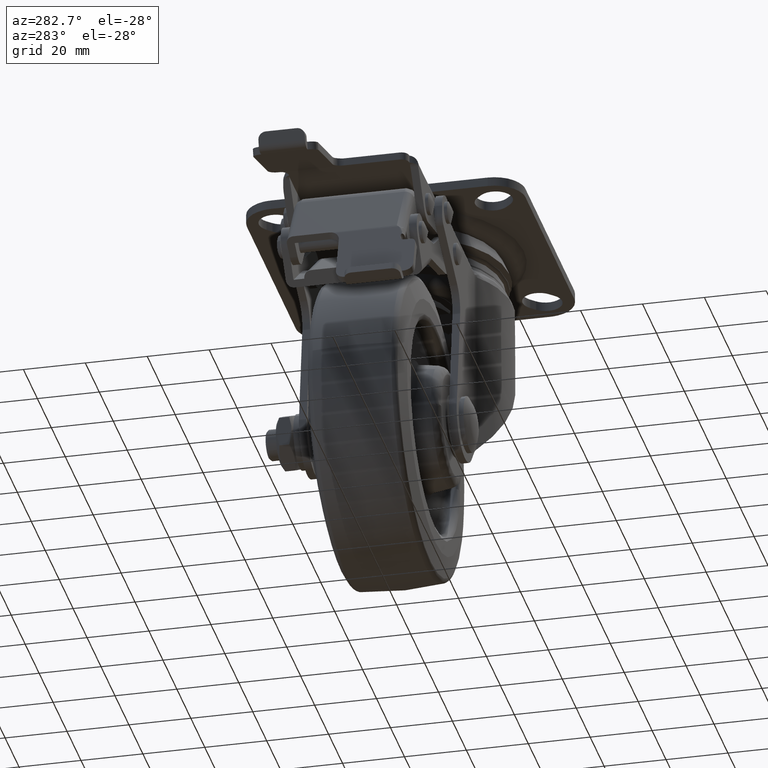
[diagram: clean part render]
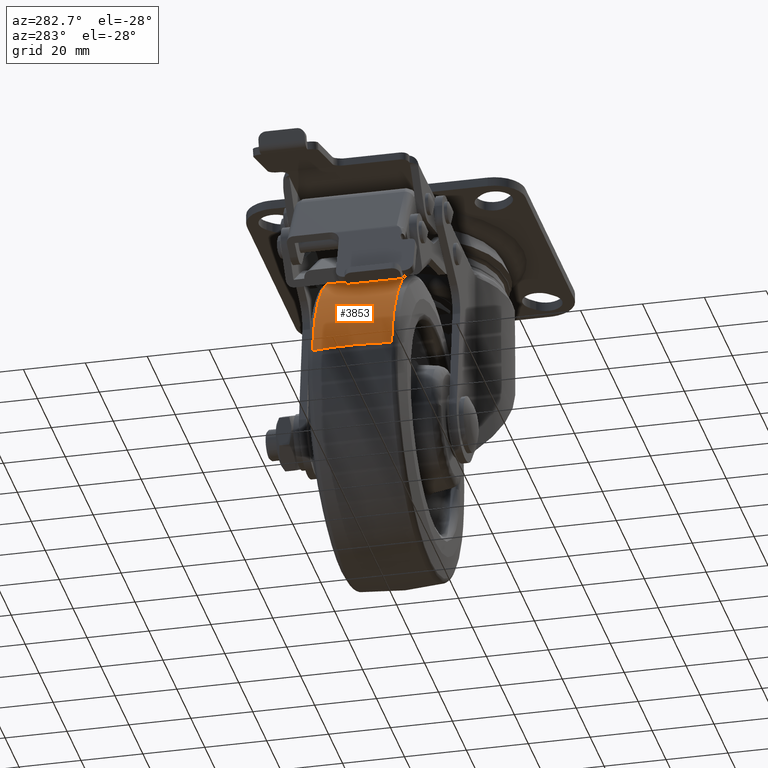
[diagram: same view with one face highlighted and labeled with its STEP entity id]
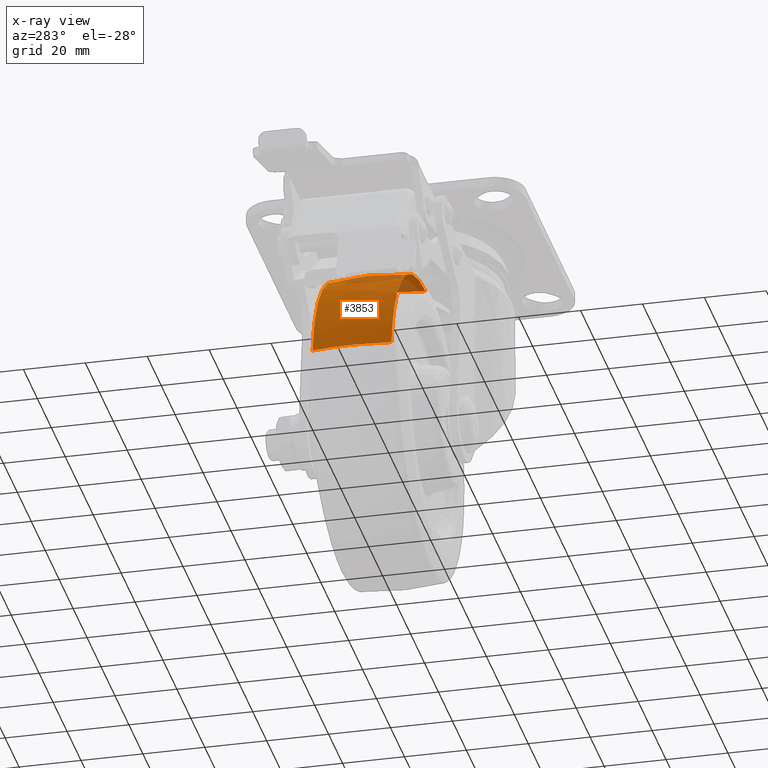
[diagram: x-ray of the same camera — body ghosted, the highlighted face saturated]
A machine part, auxiliary view. The second image highlights one B-rep face of the part: STEP entity #3853.
The next image is the same camera in x-ray: the body ghosted, the highlighted face saturated — about 9% of this face is hidden behind the body in this view.
In plain terms, the highlighted face is a freeform B-spline surface patch.
Its self-contained STEP definition (entity closure, byte-faithful):
#1715=CARTESIAN_POINT('',(-35.0,12.755094337561159,-32.816812952274823));
#1716=VERTEX_POINT('',#1715);
#1759=CARTESIAN_POINT('',(-83.854250068981514,12.755110888752890,-76.321159086246354));
#1760=VERTEX_POINT('',#1759);
#1768=CARTESIAN_POINT('',(-35.0,12.755094337561159,-32.816812952274823));
#1769=CARTESIAN_POINT('',(-37.329581637502592,12.755094777728880,-32.816740962173093));
#1770=CARTESIAN_POINT('',(-42.361526324801488,12.755095788783290,-33.174857075556538));
#1771=CARTESIAN_POINT('',(-49.015730587340506,12.755097301799051,-34.694454336183163));
#1772=CARTESIAN_POINT('',(-55.738471117578499,12.755098999047400,-37.232012903098109));
#1773=CARTESIAN_POINT('',(-60.997576511159487,12.755100473133940,-40.086907142197013));
#1774=CARTESIAN_POINT('',(-65.913696814122275,12.755101999179910,-43.635769143705922));
#1775=CARTESIAN_POINT('',(-70.584007817034973,12.755103581361350,-47.794290745024448));
#1776=CARTESIAN_POINT('',(-75.275267375671561,12.755105408120009,-53.382848926597809));
#1777=CARTESIAN_POINT('',(-78.934718683523670,12.755107142199760,-59.579295633102092));
#1778=CARTESIAN_POINT('',(-81.238978786263232,12.755108487681239,-64.988084912417449));
#1779=CARTESIAN_POINT('',(-82.895576097133542,12.755109700356421,-70.334893090764822));
#1780=CARTESIAN_POINT('',(-83.596131039306584,12.755110466194120,-74.099685183011132));
#1781=CARTESIAN_POINT('',(-83.854250068981514,12.755110888752890,-76.321159086246354));
#1782=B_SPLINE_CURVE_WITH_KNOTS('',3,(#1768,#1769,#1770,#1771,#1772,#1773,#1774,#1775,#1776,#1777,#1778,#1779,#1780,#1781),.UNSPECIFIED.,.F.,.U.,(4,1,1,1,1,1,1,1,1,1,1,4),(0.000000065013083,6.988761775559439,15.095812649392480,20.407304539641729,28.514352804107450,32.987200820597607,38.578135528131909,47.244281225270313,54.792215589357227,60.103724682545803,64.856089414631498,71.565337252981166),.UNSPECIFIED.);
#1783=EDGE_CURVE('',#1716,#1760,#1782,.T.);
#1894=CARTESIAN_POINT('',(-35.0,-12.755103784708080,-32.816812694142357));
#1895=VERTEX_POINT('',#1894);
#1904=CARTESIAN_POINT('',(-83.854246802700885,-12.755103727236071,-76.321114505429563));
#1905=VERTEX_POINT('',#1904);
#1906=CARTESIAN_POINT('',(-35.0,-12.755103784708080,-32.816812694142357));
#1907=CARTESIAN_POINT('',(-37.329588923752773,-12.755103787765030,-32.816711924056762));
#1908=CARTESIAN_POINT('',(-40.963721689032269,-12.755103791810249,-33.075507213750662));
#1909=CARTESIAN_POINT('',(-46.466862637515227,-12.755103796202331,-34.087705911422020));
#1910=CARTESIAN_POINT('',(-52.475552545324071,-12.755103799234430,-35.823920720617849));
#1911=CARTESIAN_POINT('',(-58.508684368488773,-12.755103799377990,-38.605376758681800));
#1912=CARTESIAN_POINT('',(-64.071324636377767,-12.755103796622249,-42.203177046932439));
#1913=CARTESIAN_POINT('',(-67.975381830226439,-12.755103792833770,-45.392014494844553));
#1914=CARTESIAN_POINT('',(-71.530208402597850,-12.755103787527551,-48.959846328985762));
#1915=CARTESIAN_POINT('',(-74.617878294808676,-12.755103781120130,-52.702486794059958));
#1916=CARTESIAN_POINT('',(-77.965731702224588,-12.755103771376850,-57.760768532807383));
#1917=CARTESIAN_POINT('',(-80.573742479736225,-12.755103759752849,-63.145029057260587));
#1918=CARTESIAN_POINT('',(-82.736552969121689,-12.755103744543900,-69.602875261104913));
#1919=CARTESIAN_POINT('',(-83.553147369233145,-12.755103734083630,-73.729388878773520));
#1920=CARTESIAN_POINT('',(-83.854246802700885,-12.755103727236071,-76.321114505429563));
#1921=B_SPLINE_CURVE_WITH_KNOTS('',3,(#1906,#1907,#1908,#1909,#1910,#1911,#1912,#1913,#1914,#1915,#1916,#1917,#1918,#1919,#1920),.UNSPECIFIED.,.F.,.U.,(4,1,1,1,1,1,1,1,1,1,1,1,4),(0.000000064999924,6.988757604091191,10.902516363047059,16.773112291974410,25.718779077093512,30.750758130325011,36.621254923738370,40.814535199666402,45.846506371156771,51.157999646744230,58.985477595720639,63.737843192675449,71.565294536522714),.UNSPECIFIED.);
#1922=EDGE_CURVE('',#1895,#1905,#1921,.T.);
#3791=CARTESIAN_POINT('',(-35.0,-12.755103784708080,-32.816812694142357));
#3792=CARTESIAN_POINT('',(-34.999999999999972,-6.940954481954803,-32.068489056275901));
#3793=CARTESIAN_POINT('',(-34.999999999999993,1.611809569406048,-31.727399493107288));
#3794=CARTESIAN_POINT('',(-35.000000000000021,10.112290442151179,-32.476956342300383));
#3795=CARTESIAN_POINT('',(-35.0,12.755094337561159,-32.816812952274823));
#3796=B_SPLINE_CURVE_WITH_KNOTS('',3,(#3791,#3792,#3793,#3794,#3795),.UNSPECIFIED.,.F.,.U.,(4,1,4),(1.509726E-009,17.586180216963449,25.579898512539341),.UNSPECIFIED.);
#3797=EDGE_CURVE('',#1895,#1716,#3796,.T.);
#3803=CARTESIAN_POINT('',(-83.854246802700885,-12.755103727236071,-76.321114505429563));
#3804=CARTESIAN_POINT('',(-84.259388712774467,-9.583738477615334,-76.274025712147008));
#3805=CARTESIAN_POINT('',(-84.936502829484553,-1.074542611158275,-76.195331816025060));
#3806=CARTESIAN_POINT('',(-84.529856222956568,7.469516255712433,-76.242616165630395));
#3807=CARTESIAN_POINT('',(-83.854250068981514,12.755110888752890,-76.321159086246354));
#3808=B_SPLINE_CURVE_WITH_KNOTS('',3,(#3803,#3804,#3805,#3806,#3807),.UNSPECIFIED.,.F.,.U.,(4,1,4),(1.509445E-009,9.592468214332452,25.579915142944440),.UNSPECIFIED.);
#3809=EDGE_CURVE('',#1905,#1760,#3808,.T.);
#3814=CARTESIAN_POINT('',(-34.682032215110688,-14.041158185509360,-32.990692828754305));
#3815=CARTESIAN_POINT('',(-34.675604792310438,-7.055527867899111,-32.000014999999898));
#3816=CARTESIAN_POINT('',(-34.675604792310423,5.878113E-015,-32.000014999999884));
#3817=CARTESIAN_POINT('',(-34.675604792310438,7.055530961880491,-32.000014999999898));
#3818=CARTESIAN_POINT('',(-34.682032220719847,14.041164281821565,-32.990693693312323));
#3819=CARTESIAN_POINT('',(-34.840802195224846,-14.041158185509367,-32.990692828754305));
#3820=CARTESIAN_POINT('',(-34.837584159786083,-7.055527867899111,-32.000014999999891));
#3821=CARTESIAN_POINT('',(-34.837584159786076,5.878113E-015,-32.000014999999891));
#3822=CARTESIAN_POINT('',(-34.837584159786076,7.055530961880489,-32.000014999999898));
#3823=CARTESIAN_POINT('',(-34.840802198033195,14.041164281821567,-32.990693693312323));
#3824=CARTESIAN_POINT('',(-78.642394656648108,-14.041158185509365,-32.990692828754298));
#3825=CARTESIAN_POINT('',(-79.524585041347180,-7.055527867899112,-32.000014999999891));
#3826=CARTESIAN_POINT('',(-79.524585041347180,5.878113E-015,-32.000014999999891));
#3827=CARTESIAN_POINT('',(-79.524585041347180,7.055530961880494,-32.000014999999891));
#3828=CARTESIAN_POINT('',(-78.642393886766385,14.041164281821569,-32.990693693312309));
#3829=CARTESIAN_POINT('',(-83.700745706171631,-14.041158185509362,-76.506498544822293));
#3830=CARTESIAN_POINT('',(-84.685185948914238,-7.055527867899112,-76.395452223164853));
#3831=CARTESIAN_POINT('',(-84.685185948914253,5.878113E-015,-76.395452223164838));
#3832=CARTESIAN_POINT('',(-84.685185948914267,7.055530961880492,-76.395452223164853));
#3833=CARTESIAN_POINT('',(-83.700744847057166,14.041164281821571,-76.506498641731696));
#3834=CARTESIAN_POINT('',(-83.719915938115321,-14.041158185509365,-76.671415546554016));
#3835=CARTESIAN_POINT('',(-84.704743689252609,-7.055527867899112,-76.563702868578261));
#3836=CARTESIAN_POINT('',(-84.704743689252624,5.878113E-015,-76.563702868578261));
#3837=CARTESIAN_POINT('',(-84.704743689252638,7.055530961880491,-76.563702868578261));
#3838=CARTESIAN_POINT('',(-83.719915078662680,14.041164281821560,-76.671415640554159));
#3846=(BOUNDED_SURFACE()B_SPLINE_SURFACE(2,2,((#3814,#3819,#3824,#3829,#3834),(#3815,#3820,#3825,#3830,#3835),(#3816,#3821,#3826,#3831,#3836),(#3817,#3822,#3827,#3832,#3837),(#3818,#3823,#3828,#3833,#3838)),.UNSPECIFIED.,.F.,.F.,.U.)B_SPLINE_SURFACE_WITH_KNOTS((3,2,3),(3,1,1,3),(0.0,14.306609680341960,28.613225517995311),(0.0,0.380658734785707,76.512356551963535,76.893066128389961),.UNSPECIFIED.)GEOMETRIC_REPRESENTATION_ITEM()RATIONAL_B_SPLINE_SURFACE(((0.970638864953001,0.969334628239666,0.707183217225608,0.927390548802731,0.928486253967246),(0.984090168432710,0.982767857351580,0.716983500744153,0.940242508647510,0.941353398308778),(1.002694619352352,1.001347309676176,0.730538238691624,0.958018009476416,0.959149900762172),(0.984090160425684,0.982767849355313,0.716983494910434,0.940242500997250,0.941353390649479),(0.970638853374597,0.969334616676819,0.707183208789872,0.927390537740220,0.928486242891665)))REPRESENTATION_ITEM('')SURFACE());
#3847=ORIENTED_EDGE('',*,*,#1783,.T.);
#3848=ORIENTED_EDGE('',*,*,#3809,.F.);
#3849=ORIENTED_EDGE('',*,*,#1922,.F.);
#3850=ORIENTED_EDGE('',*,*,#3797,.T.);
#3851=EDGE_LOOP('',(#3847,#3848,#3849,#3850));
#3852=FACE_OUTER_BOUND('',#3851,.T.);
#3853=ADVANCED_FACE('',(#3852),#3846,.T.);